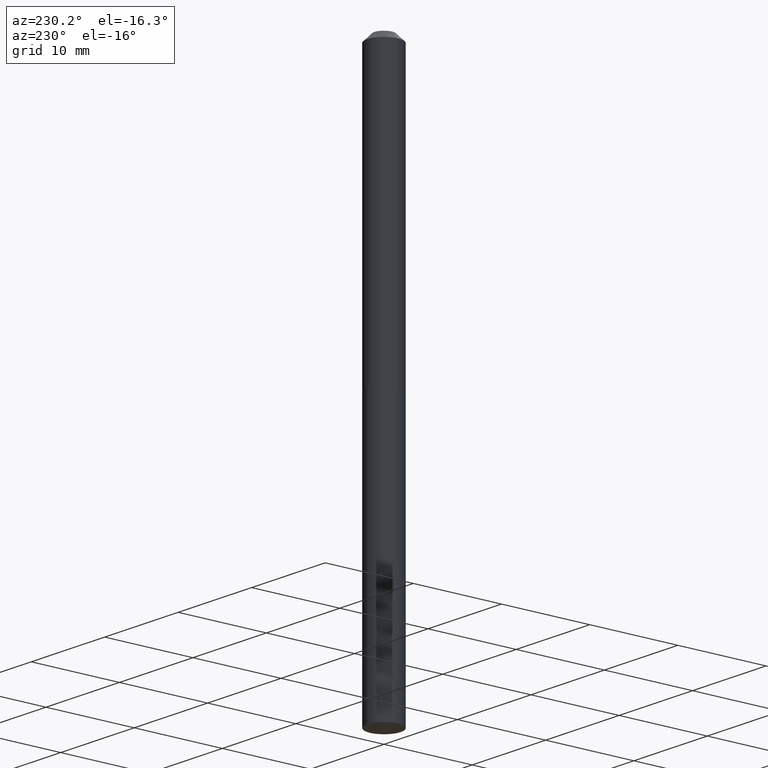
[diagram: clean part render]
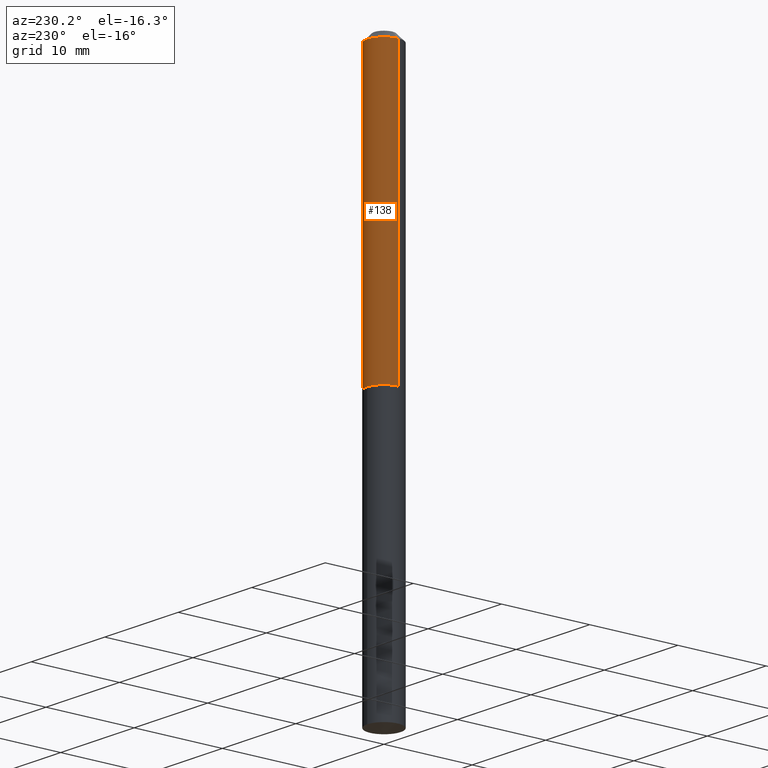
[diagram: same view with one face highlighted and labeled with its STEP entity id]
A machine part, auxiliary view. The second image highlights one B-rep face of the part: STEP entity #138.
In plain terms, the highlighted cylindrical surface (edge-blend (fillet) strip) has radius 1.8987 mm, axis along (-0, 0, 1).
Its self-contained STEP definition (entity closure, byte-faithful):
#22 = DIRECTION ( 'NONE',  ( 1.000000000000000000, -6.982962677686268288E-15, 4.876176775795935793E-29 ) ) ;
#23 = CIRCLE ( 'NONE', #51, 0.07475000000000013578 ) ;
#26 = LINE ( 'NONE', #354, #140 ) ;
#42 = CARTESIAN_POINT ( 'NONE',  ( -0.07474999999999999700, -1.747497313781831905E-15, -0.03125000000000019429 ) ) ;
#45 = FACE_OUTER_BOUND ( 'NONE', #172, .T. ) ;
#48 = CARTESIAN_POINT ( 'NONE',  ( 7.642090019328599159E-31, -1.091087918388489774E-16, -0.03125000000000019429 ) ) ;
#51 = AXIS2_PLACEMENT_3D ( 'NONE', #256, #54, #166 ) ;
#54 = DIRECTION ( 'NONE',  ( -2.445468806185136597E-29, 3.491481338843145583E-15, 1.000000000000000000 ) ) ;
#56 = VERTEX_POINT ( 'NONE', #103 ) ;
#75 = DIRECTION ( 'NONE',  ( -2.445468806185136597E-29, 3.491481338843145583E-15, 1.000000000000000000 ) ) ;
#77 = DIRECTION ( 'NONE',  ( -2.445468806185136597E-29, 3.491481338843145583E-15, 1.000000000000000000 ) ) ;
#83 = VERTEX_POINT ( 'NONE', #42 ) ;
#103 = CARTESIAN_POINT ( 'NONE',  ( 0.07475000000000013578, -4.970123685843217876E-15, -1.274000000000000021 ) ) ;
#105 = CIRCLE ( 'NONE', #237, 0.07474999999999999700 ) ;
#120 = VECTOR ( 'NONE', #345, 39.37007874015748143 ) ;
#122 = ORIENTED_EDGE ( 'NONE', *, *, #272, .T. ) ;
#131 = CARTESIAN_POINT ( 'NONE',  ( 0.07475000000000006639, -5.219764601570489928E-16, 3.644942139907465396E-30 ) ) ;
#134 = DIRECTION ( 'NONE',  ( -2.445468806185136877E-29, 3.491481338843145188E-15, 1.000000000000000000 ) ) ;
#137 = DIRECTION ( 'NONE',  ( 1.000000000000000000, -6.982962677686266711E-15, 0.000000000000000000 ) ) ;
#138 = ADVANCED_FACE ( 'NONE', ( #45 ), #233, .T. ) ;
#140 = VECTOR ( 'NONE', #134, 39.37007874015748143 ) ;
#155 = EDGE_CURVE ( 'NONE', #317, #83, #105, .T. ) ;
#160 = ORIENTED_EDGE ( 'NONE', *, *, #287, .T. ) ;
#166 = DIRECTION ( 'NONE',  ( 1.000000000000000000, -6.982962677686272233E-15, 0.000000000000000000 ) ) ;
#172 = EDGE_LOOP ( 'NONE', ( #160, #122, #181, #369 ) ) ;
#181 = ORIENTED_EDGE ( 'NONE', *, *, #155, .F. ) ;
#233 = CYLINDRICAL_SURFACE ( 'NONE', #252, 0.07475000000000006639 ) ;
#237 = AXIS2_PLACEMENT_3D ( 'NONE', #48, #77, #137 ) ;
#252 = AXIS2_PLACEMENT_3D ( 'NONE', #293, #75, #22 ) ;
#256 = CARTESIAN_POINT ( 'NONE',  ( 3.115527259079864567E-29, -4.448147225686167798E-15, -1.274000000000000021 ) ) ;
#259 = LINE ( 'NONE', #131, #120 ) ;
#272 = EDGE_CURVE ( 'NONE', #363, #83, #26, .T. ) ;
#286 = CARTESIAN_POINT ( 'NONE',  ( 0.07474999999999999700, -6.310852519958974032E-16, -0.03125000000000019429 ) ) ;
#287 = EDGE_CURVE ( 'NONE', #56, #363, #23, .T. ) ;
#292 = CARTESIAN_POINT ( 'NONE',  ( -0.07475000000000013578, -3.917016530705492240E-15, -1.274000000000000021 ) ) ;
#293 = CARTESIAN_POINT ( 'NONE',  ( 0.000000000000000000, 0.000000000000000000, 0.000000000000000000 ) ) ;
#302 = EDGE_CURVE ( 'NONE', #56, #317, #259, .T. ) ;
#317 = VERTEX_POINT ( 'NONE', #286 ) ;
#345 = DIRECTION ( 'NONE',  ( -2.445468806185136877E-29, 3.491481338843145188E-15, 1.000000000000000000 ) ) ;
#354 = CARTESIAN_POINT ( 'NONE',  ( -0.07475000000000006639, 5.311306949806753607E-16, -3.676903979965545675E-30 ) ) ;
#363 = VERTEX_POINT ( 'NONE', #292 ) ;
#369 = ORIENTED_EDGE ( 'NONE', *, *, #302, .F. ) ;